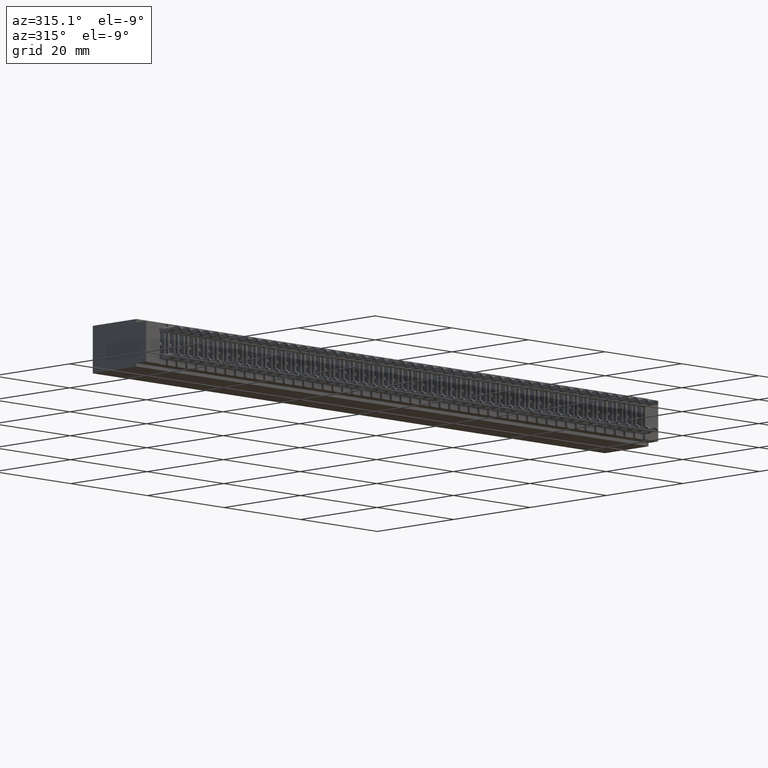
[diagram: clean part render]
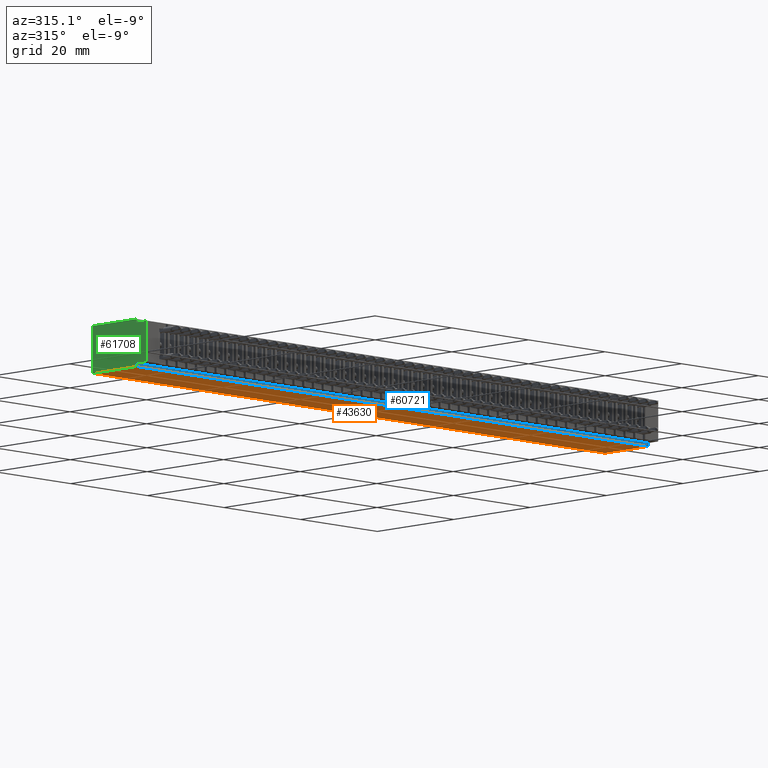
[diagram: same view with three faces highlighted in distinct colors, each labeled with its STEP entity id]
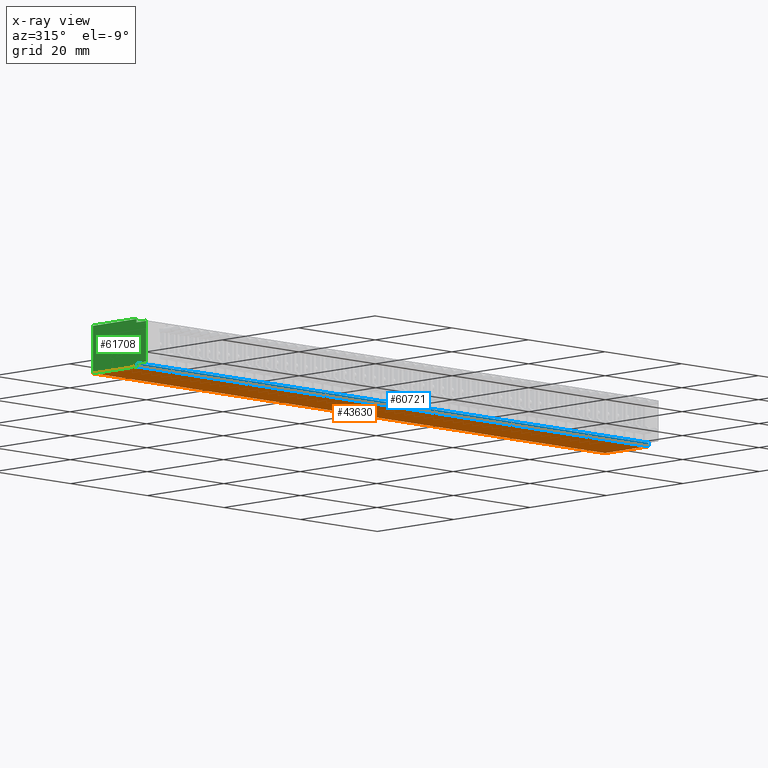
[diagram: x-ray of the same camera — body ghosted, the three highlighted faces saturated]
A machine part, auxiliary view with three faces highlighted in distinct colors.
The next image is the same camera in x-ray (body ghosted, the three faces saturated) — at least one of them is partly hidden behind the body in this view.
Their STEP definitions:

[orange] entity #43630 — the highlighted planar face has unit normal (0, 0, 1).
#24833 = VERTEX_POINT ( 'NONE', #25029 ) ;
#24896 = LINE ( 'NONE', #34811, #73980 ) ;
#25029 = CARTESIAN_POINT ( 'NONE',  ( 5.259999999999999800, 0.5500000000000000400, -0.3499999999999999800 ) ) ;
#25606 = LINE ( 'NONE', #38650, #57601 ) ;
#30877 = VERTEX_POINT ( 'NONE', #49822 ) ;
#33894 = CARTESIAN_POINT ( 'NONE',  ( 5.259999999999999800, 0.1000000000000000100, -0.3499999999999999800 ) ) ;
#34811 = CARTESIAN_POINT ( 'NONE',  ( 0.0000000000000000000, 0.5500000000000000400, -0.3499999999999999800 ) ) ;
#36152 = DIRECTION ( 'NONE',  ( -1.000000000000000000, -0.0000000000000000000, -0.0000000000000000000 ) ) ;
#36850 = DIRECTION ( 'NONE',  ( 0.0000000000000000000, 0.0000000000000000000, 1.000000000000000000 ) ) ;
#36935 = FACE_OUTER_BOUND ( 'NONE', #48451, .T. ) ;
#37607 = EDGE_CURVE ( 'NONE', #24833, #76758, #25606, .T. ) ;
#38650 = CARTESIAN_POINT ( 'NONE',  ( 5.259999999999999800, 0.5500000000000000400, -0.3499999999999999800 ) ) ;
#39683 = ORIENTED_EDGE ( 'NONE', *, *, #64269, .T. ) ;
#43630 = ADVANCED_FACE ( 'NONE', ( #36935 ), #49417, .F. ) ;
#45566 = DIRECTION ( 'NONE',  ( -1.000000000000000000, -0.0000000000000000000, -0.0000000000000000000 ) ) ;
#48451 = EDGE_LOOP ( 'NONE', ( #62402, #39683, #68906, #50349 ) ) ;
#48798 = LINE ( 'NONE', #55155, #63842 ) ;
#49417 = PLANE ( 'NONE',  #56025 ) ;
#49621 = LINE ( 'NONE', #77531, #81696 ) ;
#49822 = CARTESIAN_POINT ( 'NONE',  ( 0.0000000000000000000, 0.5500000000000000400, -0.3499999999999999800 ) ) ;
#50349 = ORIENTED_EDGE ( 'NONE', *, *, #65360, .F. ) ;
#55155 = CARTESIAN_POINT ( 'NONE',  ( 0.0000000000000000000, 0.5500000000000000400, -0.3499999999999999800 ) ) ;
#56025 = AXIS2_PLACEMENT_3D ( 'NONE', #75210, #36850, #81621 ) ;
#57601 = VECTOR ( 'NONE', #64168, 39.37007874015748100 ) ;
#58048 = VERTEX_POINT ( 'NONE', #58078 ) ;
#58078 = CARTESIAN_POINT ( 'NONE',  ( 0.0000000000000000000, 0.1000000000000000100, -0.3499999999999999800 ) ) ;
#60531 = DIRECTION ( 'NONE',  ( -0.0000000000000000000, -1.000000000000000000, -0.0000000000000000000 ) ) ;
#62402 = ORIENTED_EDGE ( 'NONE', *, *, #37607, .T. ) ;
#63842 = VECTOR ( 'NONE', #36152, 39.37007874015748100 ) ;
#64168 = DIRECTION ( 'NONE',  ( -0.0000000000000000000, -1.000000000000000000, -0.0000000000000000000 ) ) ;
#64269 = EDGE_CURVE ( 'NONE', #76758, #58048, #49621, .T. ) ;
#65360 = EDGE_CURVE ( 'NONE', #24833, #30877, #48798, .T. ) ;
#68906 = ORIENTED_EDGE ( 'NONE', *, *, #78309, .F. ) ;
#73980 = VECTOR ( 'NONE', #60531, 39.37007874015748100 ) ;
#75210 = CARTESIAN_POINT ( 'NONE',  ( 0.0000000000000000000, 0.5500000000000000400, -0.3499999999999999800 ) ) ;
#76758 = VERTEX_POINT ( 'NONE', #33894 ) ;
#77531 = CARTESIAN_POINT ( 'NONE',  ( 5.259999999999999800, 0.1000000000000000100, -0.3499999999999999800 ) ) ;
#78309 = EDGE_CURVE ( 'NONE', #30877, #58048, #24896, .T. ) ;
#81621 = DIRECTION ( 'NONE',  ( 1.000000000000000000, 0.0000000000000000000, -0.0000000000000000000 ) ) ;
#81696 = VECTOR ( 'NONE', #45566, 39.37007874015748100 ) ;

[blue] entity #60721 — the highlighted planar face has unit normal (0, 1, 0).
#2116 = PLANE ( 'NONE',  #26927 ) ;
#7810 = EDGE_CURVE ( 'NONE', #67738, #76758, #23892, .T. ) ;
#8052 = DIRECTION ( 'NONE',  ( -0.0000000000000000000, -0.0000000000000000000, -1.000000000000000000 ) ) ;
#8575 = DIRECTION ( 'NONE',  ( 0.0000000000000000000, -0.0000000000000000000, 1.000000000000000000 ) ) ;
#9353 = CARTESIAN_POINT ( 'NONE',  ( 5.259999999999999800, 0.1000000000000000100, -0.3249999999999999600 ) ) ;
#9833 = LINE ( 'NONE', #59011, #41857 ) ;
#12626 = CARTESIAN_POINT ( 'NONE',  ( 0.0000000000000000000, 0.1000000000000000100, -0.3249999999999999600 ) ) ;
#12805 = CARTESIAN_POINT ( 'NONE',  ( 5.259999999999999800, 0.1000000000000000100, -0.3499999999999999800 ) ) ;
#19252 = DIRECTION ( 'NONE',  ( -0.0000000000000000000, -0.0000000000000000000, -1.000000000000000000 ) ) ;
#20160 = VECTOR ( 'NONE', #21984, 39.37007874015748100 ) ;
#21822 = EDGE_LOOP ( 'NONE', ( #66518, #58156, #62466, #58149 ) ) ;
#21984 = DIRECTION ( 'NONE',  ( -1.000000000000000000, -0.0000000000000000000, -0.0000000000000000000 ) ) ;
#23892 = LINE ( 'NONE', #12805, #55896 ) ;
#26717 = EDGE_CURVE ( 'NONE', #67738, #37245, #50121, .T. ) ;
#26927 = AXIS2_PLACEMENT_3D ( 'NONE', #78869, #66003, #8575 ) ;
#33894 = CARTESIAN_POINT ( 'NONE',  ( 5.259999999999999800, 0.1000000000000000100, -0.3499999999999999800 ) ) ;
#34868 = CARTESIAN_POINT ( 'NONE',  ( 5.259999999999999800, 0.1000000000000000100, -0.3249999999999999600 ) ) ;
#37245 = VERTEX_POINT ( 'NONE', #12626 ) ;
#41857 = VECTOR ( 'NONE', #8052, 39.37007874015748100 ) ;
#45566 = DIRECTION ( 'NONE',  ( -1.000000000000000000, -0.0000000000000000000, -0.0000000000000000000 ) ) ;
#49621 = LINE ( 'NONE', #77531, #81696 ) ;
#50121 = LINE ( 'NONE', #34868, #20160 ) ;
#51691 = EDGE_CURVE ( 'NONE', #37245, #58048, #9833, .T. ) ;
#55896 = VECTOR ( 'NONE', #19252, 39.37007874015748100 ) ;
#58048 = VERTEX_POINT ( 'NONE', #58078 ) ;
#58078 = CARTESIAN_POINT ( 'NONE',  ( 0.0000000000000000000, 0.1000000000000000100, -0.3499999999999999800 ) ) ;
#58149 = ORIENTED_EDGE ( 'NONE', *, *, #26717, .T. ) ;
#58156 = ORIENTED_EDGE ( 'NONE', *, *, #64269, .F. ) ;
#59011 = CARTESIAN_POINT ( 'NONE',  ( 0.0000000000000000000, 0.1000000000000000100, -0.3499999999999999800 ) ) ;
#60721 = ADVANCED_FACE ( 'NONE', ( #62845 ), #2116, .F. ) ;
#62466 = ORIENTED_EDGE ( 'NONE', *, *, #7810, .F. ) ;
#62845 = FACE_OUTER_BOUND ( 'NONE', #21822, .T. ) ;
#64269 = EDGE_CURVE ( 'NONE', #76758, #58048, #49621, .T. ) ;
#66003 = DIRECTION ( 'NONE',  ( 0.0000000000000000000, 1.000000000000000000, 0.0000000000000000000 ) ) ;
#66518 = ORIENTED_EDGE ( 'NONE', *, *, #51691, .T. ) ;
#67738 = VERTEX_POINT ( 'NONE', #9353 ) ;
#76758 = VERTEX_POINT ( 'NONE', #33894 ) ;
#77531 = CARTESIAN_POINT ( 'NONE',  ( 5.259999999999999800, 0.1000000000000000100, -0.3499999999999999800 ) ) ;
#78869 = CARTESIAN_POINT ( 'NONE',  ( 5.259999999999999800, 0.1000000000000000100, -0.3499999999999999800 ) ) ;
#81696 = VECTOR ( 'NONE', #45566, 39.37007874015748100 ) ;

[green] entity #61708 — the highlighted planar face has unit normal (1, 0, 0).
#301 = CARTESIAN_POINT ( 'NONE',  ( 0.0000000000000000000, 0.5500000000000000400, 0.0000000000000000000 ) ) ;
#443 = LINE ( 'NONE', #79055, #49522 ) ;
#658 = DIRECTION ( 'NONE',  ( -0.0000000000000000000, -0.0000000000000000000, 1.000000000000000000 ) ) ;
#1741 = ORIENTED_EDGE ( 'NONE', *, *, #18368, .F. ) ;
#4419 = EDGE_CURVE ( 'NONE', #65221, #13289, #43612, .T. ) ;
#8052 = DIRECTION ( 'NONE',  ( -0.0000000000000000000, -0.0000000000000000000, -1.000000000000000000 ) ) ;
#9023 = CARTESIAN_POINT ( 'NONE',  ( 0.0000000000000000000, 0.1000000000000000100, 0.0000000000000000000 ) ) ;
#9833 = LINE ( 'NONE', #59011, #41857 ) ;
#11894 = EDGE_CURVE ( 'NONE', #30877, #48342, #22871, .T. ) ;
#12626 = CARTESIAN_POINT ( 'NONE',  ( 0.0000000000000000000, 0.1000000000000000100, -0.3249999999999999600 ) ) ;
#13213 = PLANE ( 'NONE',  #39243 ) ;
#13289 = VERTEX_POINT ( 'NONE', #54188 ) ;
#13639 = DIRECTION ( 'NONE',  ( -0.0000000000000000000, -1.000000000000000000, -0.0000000000000000000 ) ) ;
#13856 = EDGE_CURVE ( 'NONE', #57755, #31467, #443, .T. ) ;
#18368 = EDGE_CURVE ( 'NONE', #57755, #37245, #51586, .T. ) ;
#19686 = DIRECTION ( 'NONE',  ( 1.000000000000000000, -0.0000000000000000000, 0.0000000000000000000 ) ) ;
#22871 = LINE ( 'NONE', #77399, #54901 ) ;
#24896 = LINE ( 'NONE', #34811, #73980 ) ;
#25764 = VECTOR ( 'NONE', #51869, 39.37007874015748100 ) ;
#27568 = ORIENTED_EDGE ( 'NONE', *, *, #13856, .T. ) ;
#29598 = CARTESIAN_POINT ( 'NONE',  ( 0.0000000000000000000, 0.0000000000000000000, -0.3249999999999999600 ) ) ;
#30477 = ORIENTED_EDGE ( 'NONE', *, *, #51691, .F. ) ;
#30877 = VERTEX_POINT ( 'NONE', #49822 ) ;
#31084 = FACE_OUTER_BOUND ( 'NONE', #62596, .T. ) ;
#31467 = VERTEX_POINT ( 'NONE', #37746 ) ;
#34811 = CARTESIAN_POINT ( 'NONE',  ( 0.0000000000000000000, 0.5500000000000000400, -0.3499999999999999800 ) ) ;
#36302 = CARTESIAN_POINT ( 'NONE',  ( 0.0000000000000000000, 0.1000000000000000100, 0.0000000000000000000 ) ) ;
#36592 = VECTOR ( 'NONE', #37749, 39.37007874015748100 ) ;
#37245 = VERTEX_POINT ( 'NONE', #12626 ) ;
#37746 = CARTESIAN_POINT ( 'NONE',  ( 0.0000000000000000000, 0.0000000000000000000, -0.02500000000000000500 ) ) ;
#37749 = DIRECTION ( 'NONE',  ( 0.0000000000000000000, 1.000000000000000000, 0.0000000000000000000 ) ) ;
#38414 = ORIENTED_EDGE ( 'NONE', *, *, #70298, .F. ) ;
#39010 = CARTESIAN_POINT ( 'NONE',  ( 0.0000000000000000000, 0.0000000000000000000, -0.02500000000000000500 ) ) ;
#39243 = AXIS2_PLACEMENT_3D ( 'NONE', #301, #19686, #64449 ) ;
#40295 = VECTOR ( 'NONE', #13639, 39.37007874015748100 ) ;
#40659 = DIRECTION ( 'NONE',  ( -0.0000000000000000000, -0.0000000000000000000, 1.000000000000000000 ) ) ;
#41857 = VECTOR ( 'NONE', #8052, 39.37007874015748100 ) ;
#43612 = LINE ( 'NONE', #36302, #47657 ) ;
#47657 = VECTOR ( 'NONE', #74674, 39.37007874015748100 ) ;
#48215 = ORIENTED_EDGE ( 'NONE', *, *, #4419, .F. ) ;
#48342 = VERTEX_POINT ( 'NONE', #64840 ) ;
#49522 = VECTOR ( 'NONE', #40659, 39.37007874015748100 ) ;
#49822 = CARTESIAN_POINT ( 'NONE',  ( 0.0000000000000000000, 0.5500000000000000400, -0.3499999999999999800 ) ) ;
#51586 = LINE ( 'NONE', #69678, #36592 ) ;
#51691 = EDGE_CURVE ( 'NONE', #37245, #58048, #9833, .T. ) ;
#51869 = DIRECTION ( 'NONE',  ( -0.0000000000000000000, -1.000000000000000000, -0.0000000000000000000 ) ) ;
#54188 = CARTESIAN_POINT ( 'NONE',  ( 0.0000000000000000000, 0.1000000000000000100, -0.02500000000000000500 ) ) ;
#54481 = EDGE_CURVE ( 'NONE', #48342, #65221, #57322, .T. ) ;
#54901 = VECTOR ( 'NONE', #658, 39.37007874015748100 ) ;
#57322 = LINE ( 'NONE', #77472, #40295 ) ;
#57755 = VERTEX_POINT ( 'NONE', #29598 ) ;
#58048 = VERTEX_POINT ( 'NONE', #58078 ) ;
#58078 = CARTESIAN_POINT ( 'NONE',  ( 0.0000000000000000000, 0.1000000000000000100, -0.3499999999999999800 ) ) ;
#59011 = CARTESIAN_POINT ( 'NONE',  ( 0.0000000000000000000, 0.1000000000000000100, -0.3499999999999999800 ) ) ;
#60531 = DIRECTION ( 'NONE',  ( -0.0000000000000000000, -1.000000000000000000, -0.0000000000000000000 ) ) ;
#61708 = ADVANCED_FACE ( 'NONE', ( #31084 ), #13213, .F. ) ;
#62596 = EDGE_LOOP ( 'NONE', ( #27568, #38414, #48215, #76557, #64879, #75011, #30477, #1741 ) ) ;
#64449 = DIRECTION ( 'NONE',  ( 0.0000000000000000000, 0.0000000000000000000, -1.000000000000000000 ) ) ;
#64840 = CARTESIAN_POINT ( 'NONE',  ( 0.0000000000000000000, 0.5500000000000000400, 0.0000000000000000000 ) ) ;
#64879 = ORIENTED_EDGE ( 'NONE', *, *, #11894, .F. ) ;
#65221 = VERTEX_POINT ( 'NONE', #9023 ) ;
#69678 = CARTESIAN_POINT ( 'NONE',  ( 0.0000000000000000000, 0.0000000000000000000, -0.3249999999999999600 ) ) ;
#70298 = EDGE_CURVE ( 'NONE', #13289, #31467, #76824, .T. ) ;
#73980 = VECTOR ( 'NONE', #60531, 39.37007874015748100 ) ;
#74674 = DIRECTION ( 'NONE',  ( 0.0000000000000000000, 0.0000000000000000000, -1.000000000000000000 ) ) ;
#75011 = ORIENTED_EDGE ( 'NONE', *, *, #78309, .T. ) ;
#76557 = ORIENTED_EDGE ( 'NONE', *, *, #54481, .F. ) ;
#76824 = LINE ( 'NONE', #39010, #25764 ) ;
#77399 = CARTESIAN_POINT ( 'NONE',  ( 0.0000000000000000000, 0.5500000000000000400, 0.0000000000000000000 ) ) ;
#77472 = CARTESIAN_POINT ( 'NONE',  ( 0.0000000000000000000, 0.5500000000000000400, 0.0000000000000000000 ) ) ;
#78309 = EDGE_CURVE ( 'NONE', #30877, #58048, #24896, .T. ) ;
#79055 = CARTESIAN_POINT ( 'NONE',  ( 0.0000000000000000000, 0.0000000000000000000, 0.0000000000000000000 ) ) ;